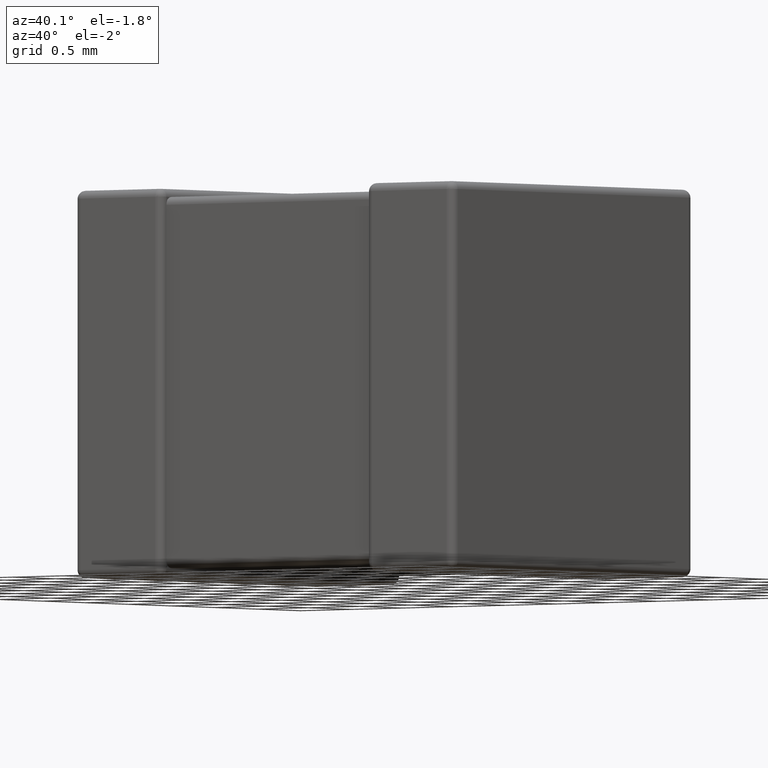
[diagram: clean part render]
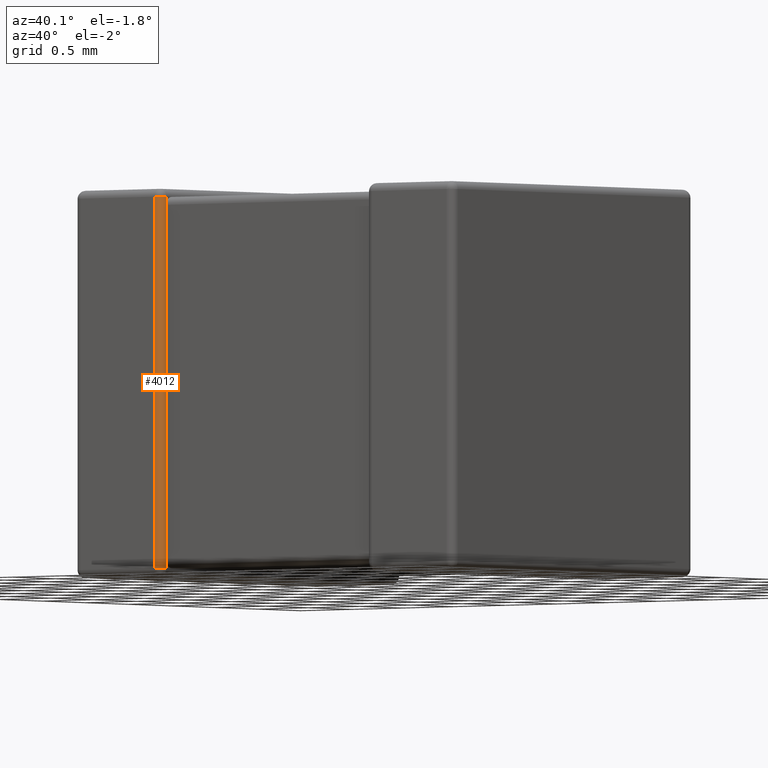
[diagram: same view with one face highlighted and labeled with its STEP entity id]
A machine part, auxiliary view. The second image highlights one B-rep face of the part: STEP entity #4012.
In plain terms, the highlighted cylindrical surface (edge-blend (fillet) strip) has radius 0.0603 mm, axis along (0, 0, 1).
Its self-contained STEP definition (entity closure, byte-faithful):
#54 = CYLINDRICAL_SURFACE ( 'NONE', #3039, 0.06031999999999999168 ) ;
#107 = ORIENTED_EDGE ( 'NONE', *, *, #3754, .F. ) ;
#129 = DIRECTION ( 'NONE',  ( 0.000000000000000000, 0.000000000000000000, 1.000000000000000000 ) ) ;
#228 = EDGE_CURVE ( 'NONE', #753, #2029, #2253, .T. ) ;
#260 = CARTESIAN_POINT ( 'NONE',  ( 0.7896799999999952746, 0.06031999999999999862, -0.06031999999999999862 ) ) ;
#426 = LINE ( 'NONE', #4042, #4647 ) ;
#447 = ORIENTED_EDGE ( 'NONE', *, *, #228, .T. ) ;
#459 = VERTEX_POINT ( 'NONE', #506 ) ;
#506 = CARTESIAN_POINT ( 'NONE',  ( 0.7896799999999952746, 0.000000000000000000, -2.839679999999999982 ) ) ;
#718 = LINE ( 'NONE', #1775, #1776 ) ;
#753 = VERTEX_POINT ( 'NONE', #2681 ) ;
#935 = CARTESIAN_POINT ( 'NONE',  ( 0.8499999999999999778, 0.06031999999999999168, -0.06031999999999999168 ) ) ;
#977 = ORIENTED_EDGE ( 'NONE', *, *, #1554, .T. ) ;
#1099 = CIRCLE ( 'NONE', #3882, 0.06031999999999999168 ) ;
#1157 = DIRECTION ( 'NONE',  ( -0.000000000000000000, -0.000000000000000000, 1.000000000000000000 ) ) ;
#1217 = CARTESIAN_POINT ( 'NONE',  ( 0.8499999999999953149, 0.06031999999999999862, 0.000000000000000000 ) ) ;
#1245 = VERTEX_POINT ( 'NONE', #2501 ) ;
#1431 = DIRECTION ( 'NONE',  ( -1.000000000000000000, 0.000000000000000000, 0.000000000000000000 ) ) ;
#1478 = CIRCLE ( 'NONE', #4499, 0.06031999999999999168 ) ;
#1494 = CARTESIAN_POINT ( 'NONE',  ( 0.7896799999999952746, 0.06031999999999999862, 0.000000000000000000 ) ) ;
#1504 = ORIENTED_EDGE ( 'NONE', *, *, #1801, .T. ) ;
#1554 = EDGE_CURVE ( 'NONE', #1245, #3442, #718, .T. ) ;
#1600 = DIRECTION ( 'NONE',  ( 1.000000000000000000, 0.000000000000000000, 1.123385871690053535E-16 ) ) ;
#1679 = DIRECTION ( 'NONE',  ( 0.000000000000000000, 0.000000000000000000, 1.000000000000000000 ) ) ;
#1751 = EDGE_LOOP ( 'NONE', ( #3397, #447, #1504, #977, #4007, #107 ) ) ;
#1770 = DIRECTION ( 'NONE',  ( -0.000000000000000000, -0.000000000000000000, 1.000000000000000000 ) ) ;
#1775 = CARTESIAN_POINT ( 'NONE',  ( 0.8499999999999953149, 0.06031999999999999862, 0.000000000000000000 ) ) ;
#1776 = VECTOR ( 'NONE', #2521, 1000.000000000000000 ) ;
#1801 = EDGE_CURVE ( 'NONE', #2029, #1245, #426, .T. ) ;
#1972 = VECTOR ( 'NONE', #1679, 1000.000000000000000 ) ;
#2027 = LINE ( 'NONE', #3905, #1972 ) ;
#2029 = VERTEX_POINT ( 'NONE', #3367 ) ;
#2253 = LINE ( 'NONE', #1217, #2944 ) ;
#2501 = CARTESIAN_POINT ( 'NONE',  ( 0.8499999999999999778, 0.06031999999999999168, -0.1206399999999999834 ) ) ;
#2521 = DIRECTION ( 'NONE',  ( 0.000000000000000000, 0.000000000000000000, 1.000000000000000000 ) ) ;
#2681 = CARTESIAN_POINT ( 'NONE',  ( 0.8499999999999999778, 0.06031999999999999168, -2.839679999999999982 ) ) ;
#2762 = EDGE_CURVE ( 'NONE', #459, #753, #1478, .T. ) ;
#2866 = FACE_OUTER_BOUND ( 'NONE', #1751, .T. ) ;
#2944 = VECTOR ( 'NONE', #129, 1000.000000000000000 ) ;
#3039 = AXIS2_PLACEMENT_3D ( 'NONE', #1494, #4286, #3662 ) ;
#3142 = CARTESIAN_POINT ( 'NONE',  ( 0.7896799999999952746, 0.000000000000000000, -0.06031999999999999862 ) ) ;
#3367 = CARTESIAN_POINT ( 'NONE',  ( 0.8499999999999999778, 0.06031999999999999168, -2.779359999999999609 ) ) ;
#3386 = EDGE_CURVE ( 'NONE', #3442, #4002, #1099, .T. ) ;
#3397 = ORIENTED_EDGE ( 'NONE', *, *, #2762, .T. ) ;
#3442 = VERTEX_POINT ( 'NONE', #935 ) ;
#3570 = CARTESIAN_POINT ( 'NONE',  ( 0.7896799999999951636, 0.06031999999999999862, -2.839679999999999982 ) ) ;
#3662 = DIRECTION ( 'NONE',  ( 1.000000000000000000, 0.000000000000000000, 0.000000000000000000 ) ) ;
#3754 = EDGE_CURVE ( 'NONE', #459, #4002, #2027, .T. ) ;
#3882 = AXIS2_PLACEMENT_3D ( 'NONE', #260, #4214, #1600 ) ;
#3905 = CARTESIAN_POINT ( 'NONE',  ( 0.7896799999999952746, 0.000000000000000000, 0.000000000000000000 ) ) ;
#4002 = VERTEX_POINT ( 'NONE', #3142 ) ;
#4007 = ORIENTED_EDGE ( 'NONE', *, *, #3386, .T. ) ;
#4012 = ADVANCED_FACE ( 'NONE', ( #2866 ), #54, .T. ) ;
#4042 = CARTESIAN_POINT ( 'NONE',  ( 0.8499999999999999778, 0.06031999999999999168, -2.899999999999999911 ) ) ;
#4214 = DIRECTION ( 'NONE',  ( 1.123385871690056000E-16, -0.000000000000000000, -1.000000000000000000 ) ) ;
#4286 = DIRECTION ( 'NONE',  ( 0.000000000000000000, 0.000000000000000000, 1.000000000000000000 ) ) ;
#4499 = AXIS2_PLACEMENT_3D ( 'NONE', #3570, #1770, #1431 ) ;
#4647 = VECTOR ( 'NONE', #1157, 1000.000000000000000 ) ;